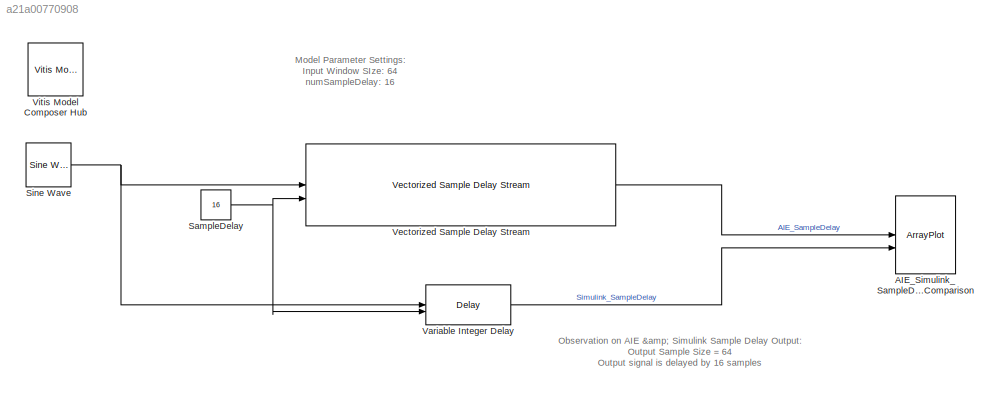
MODEL slx_a21a00770908
KIND model
CONFIG AbsTol = auto
CONFIG EnableMultiTasking = off
CONFIG FixedStep = auto
CONFIG MaxStep = auto
CONFIG MinStep = auto
CONFIG RelTol = 1e-3
CONFIG SampleTimeConstraint = Unconstrained
CONFIG SolverName = VariableStepAuto
CONFIG StartTime = 0.0
CONFIG StopTime = 0.1
BLOCK [ArrayPlot] AIE_Simulink_SampleDelay_Comparison
  GraphicalSettings = {"Style":{"BackgroundColor":[0.15686274509803921,0.15686274509803921,0.15686274509803921],"AxesColor":[0,0,0],"LabelsColor":[0.68627450980392157,0.68627450980392157,0.68627450980392157],"LineStyle":["-","-"],"LineColor":[[1,1,0.066666666666666666],[0.074509803921568626,0.62352941176470589,1]],"LineWidth":[1.5,1.5],"Marker":[".","."],"FontSize":"small"},"Cursors":{"Enabled":false,"XLocation":[2,8],...<+386ch>
  NumInputPorts = 2
  PlotType = Line
  ShowLegend = on
  WasSavedAsWebScope = on
  WindowPosition = [2.000000,37.000000,1280.000000,655.000000,]
  YLimits = [-1.1888,1.1888]
BLOCK [Constant] SampleDelay
  OutDataTypeStr = uint32
  Value = 16
BLOCK [Reference] Sine Wave  REF=dspsrcs4/Sine Wave
  SourceBlock = dspsrcs4/Sine Wave
  SourceType = Sine Wave
BLOCK [Delay] Variable Integer Delay
  DelayLengthSource = Input port
  DelayLengthUpperLimit = 256
  InputPortMap = u0,p1
  InputProcessing = Columns as channels (frame based)
BLOCK [Reference] Vectorized Sample Delay Stream  REF=aieDSP/Vectorized Sample Delay Stream
  SourceBlock = aieDSP/Vectorized Sample Delay Stream
  SourceType = Vectorized Sample Delay Stream
BLOCK [Reference] Vitis Model Composer Hub  REF=vmcUtilities/Vitis Model Composer Hub
  SourceBlock = vmcUtilities/Vitis Model Composer Hub
  SourceType = VMC Hub
  Tag = genX
  UserDataPersistent = on
ANNOTATION (root): Model Parameter Settings: Input Window SIze: 64 numSampleDelay: 16
ANNOTATION (root): Observation on AIE & Simulink Sample Delay Output: Output Sample Size = 64 Output signal is delayed by 16 samples
NET SampleDelay:1 -> Variable Integer Delay:2, Vectorized Sample Delay Stream:2
NET Sine Wave:1 -> Variable Integer Delay:1, Vectorized Sample Delay Stream:1
LINE Variable Integer Delay:1 -> AIE_Simulink_SampleDelay_Comparison:2
LINE Vectorized Sample Delay Stream:1 -> AIE_Simulink_SampleDelay_Comparison:1
note: NET lines group one-source signal fan-out (src -> all destinations, sorted); 1:1 wires keep LINE
